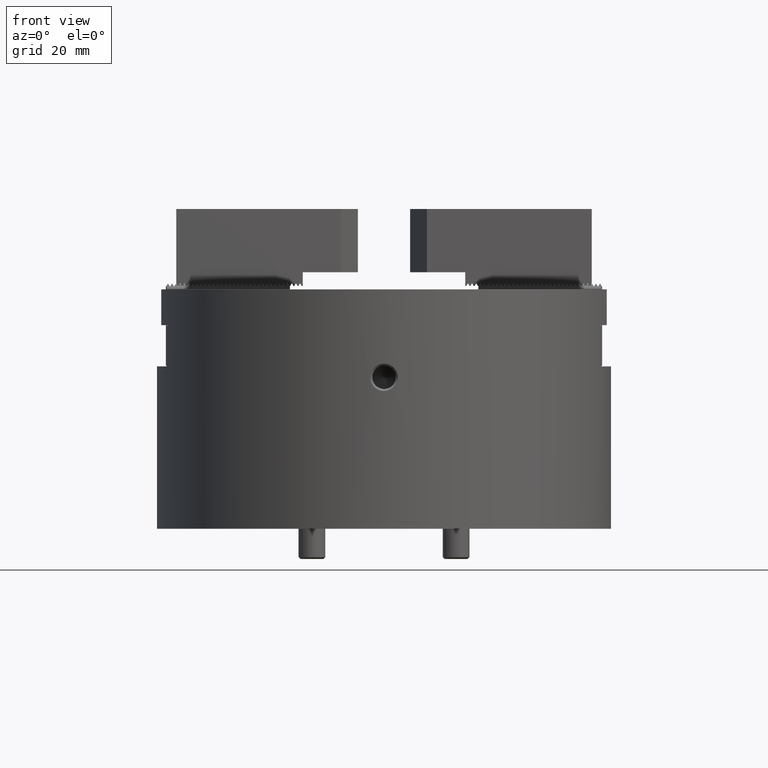
[diagram: clean part render]
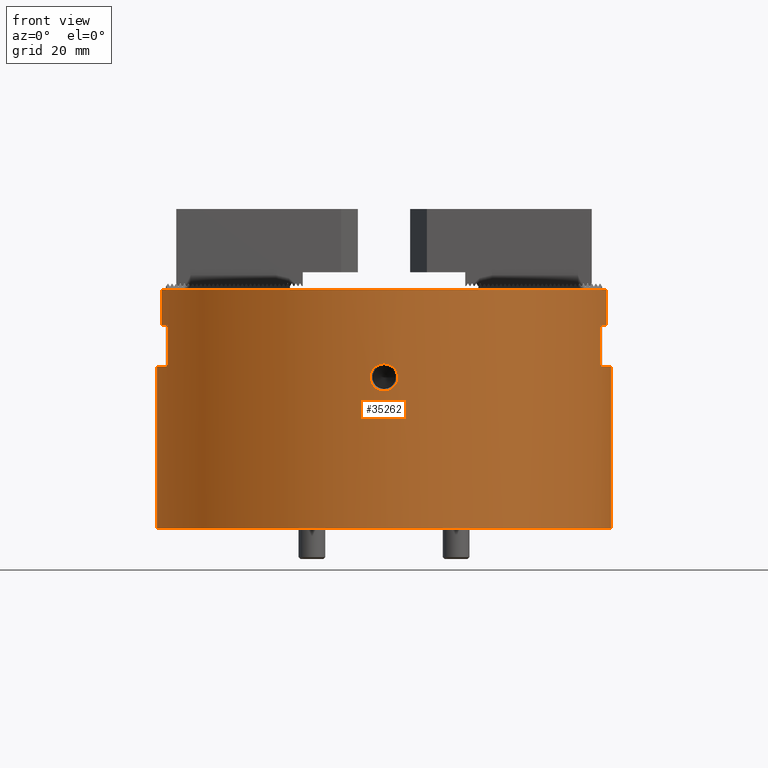
[diagram: same view with one face highlighted and labeled with its STEP entity id]
A machine part, front view. The second image highlights one B-rep face of the part: STEP entity #35262.
In plain terms, the highlighted cylindrical surface (bore or boss wall) has radius 82.5 mm, axis along (-0, 0, 1).
Its self-contained STEP definition (entity closure, byte-faithful):
#581=B_SPLINE_CURVE_WITH_KNOTS('',3,(#51946,#51947,#51948,#51949,#51950,
#51951,#51952,#51953,#51954,#51955,#51956,#51957,#51958,#51959,#51960,#51961,
#51962,#51963,#51964,#51965,#51966,#51967,#51968,#51969,#51970,#51971,#51972,
#51973,#51974,#51975,#51976,#51977,#51978,#51979,#51980),.UNSPECIFIED.,
 .T.,.F.,(1,1,1,1,1,1,1,1,1,1,1,1,1,1,1,1,1,1,1,1,1,1,1,1,1,1,1,1,1,1,1,
1,1,1,1,1,1,1,1),(-0.0953947368421053,-0.0641447368421053,-0.0328947368421053,
0.,0.0296875,0.060859375,0.09210546875,0.1233552734375,0.154605263671875,
0.185855263183594,0.21710526315918,0.248355263157959,0.279605263157898,
0.310855263157895,0.342105263157895,0.373355263157895,0.404605263157895,
0.435855263157895,0.467105263157895,0.498355263157895,0.529605263157895,
0.560855263157895,0.592105263157895,0.623355263157895,0.654605263157895,
0.685855263157895,0.717105263157895,0.748355263157895,0.779605263157895,
0.810855263157895,0.842105263157895,0.873355263157895,0.904605263157895,
0.935855263157895,0.967105263157895,1.,1.0296875,1.060859375,1.09210546875),
 .UNSPECIFIED.);
#583=B_SPLINE_CURVE_WITH_KNOTS('',3,(#52103,#52104,#52105,#52106,#52107,
#52108,#52109,#52110,#52111,#52112,#52113,#52114,#52115,#52116,#52117,#52118,
#52119,#52120,#52121,#52122,#52123,#52124,#52125,#52126,#52127,#52128,#52129,
#52130,#52131,#52132,#52133,#52134,#52135,#52136,#52137),.UNSPECIFIED.,
 .T.,.F.,(1,1,1,1,1,1,1,1,1,1,1,1,1,1,1,1,1,1,1,1,1,1,1,1,1,1,1,1,1,1,1,
1,1,1,1,1,1,1,1),(-0.0953947368421053,-0.0641447368421053,-0.0328947368421053,
0.,0.0296875,0.060859375,0.09210546875,0.1233552734375,0.154605263671875,
0.185855263183594,0.21710526315918,0.248355263157959,0.279605263157898,
0.310855263157895,0.342105263157895,0.373355263157895,0.404605263157895,
0.435855263157895,0.467105263157895,0.498355263157895,0.529605263157895,
0.560855263157895,0.592105263157895,0.623355263157895,0.654605263157895,
0.685855263157895,0.717105263157895,0.748355263157895,0.779605263157895,
0.810855263157895,0.842105263157895,0.873355263157895,0.904605263157895,
0.935855263157895,0.967105263157895,1.,1.0296875,1.060859375,1.09210546875),
 .UNSPECIFIED.);
#612=CYLINDRICAL_SURFACE('',#37011,82.5);
#944=CIRCLE('',#36760,82.5);
#948=CIRCLE('',#36771,82.5);
#952=CIRCLE('',#36778,82.5);
#953=CIRCLE('',#36780,82.5);
#1002=CIRCLE('',#36985,82.5);
#1004=CIRCLE('',#36989,82.5);
#1007=CIRCLE('',#36994,82.5);
#1017=CIRCLE('',#37010,82.5);
#1018=CIRCLE('',#37012,82.5);
#2531=ORIENTED_EDGE('',*,*,#12855,.F.);
#2532=ORIENTED_EDGE('',*,*,#12860,.F.);
#2533=ORIENTED_EDGE('',*,*,#12850,.F.);
#2534=ORIENTED_EDGE('',*,*,#12337,.F.);
#2535=ORIENTED_EDGE('',*,*,#12285,.F.);
#2536=ORIENTED_EDGE('',*,*,#12294,.F.);
#2537=ORIENTED_EDGE('',*,*,#12299,.F.);
#2538=ORIENTED_EDGE('',*,*,#12893,.F.);
#2539=ORIENTED_EDGE('',*,*,#12866,.F.);
#2540=ORIENTED_EDGE('',*,*,#12870,.F.);
#2541=ORIENTED_EDGE('',*,*,#12874,.F.);
#2542=ORIENTED_EDGE('',*,*,#12335,.F.);
#2543=ORIENTED_EDGE('',*,*,#12309,.F.);
#2544=ORIENTED_EDGE('',*,*,#12320,.F.);
#2545=ORIENTED_EDGE('',*,*,#12324,.F.);
#2546=ORIENTED_EDGE('',*,*,#12890,.F.);
#2547=ORIENTED_EDGE('',*,*,#12876,.T.);
#2548=ORIENTED_EDGE('',*,*,#12818,.T.);
#2549=ORIENTED_EDGE('',*,*,#12815,.T.);
#12285=EDGE_CURVE('',#17656,#17653,#21153,.T.);
#12294=EDGE_CURVE('',#17662,#17656,#944,.T.);
#12299=EDGE_CURVE('',#17666,#17662,#21163,.T.);
#12309=EDGE_CURVE('',#17675,#17673,#21172,.T.);
#12320=EDGE_CURVE('',#17684,#17675,#948,.T.);
#12324=EDGE_CURVE('',#17688,#17684,#21184,.T.);
#12335=EDGE_CURVE('',#17673,#17691,#952,.T.);
#12337=EDGE_CURVE('',#17653,#17695,#953,.T.);
#12815=EDGE_CURVE('',#18026,#18026,#581,.T.);
#12818=EDGE_CURVE('',#18030,#18030,#583,.T.);
#12850=EDGE_CURVE('',#17695,#18067,#21532,.T.);
#12855=EDGE_CURVE('',#18071,#18072,#21537,.T.);
#12860=EDGE_CURVE('',#18067,#18071,#1002,.T.);
#12866=EDGE_CURVE('',#18080,#18081,#21546,.T.);
#12870=EDGE_CURVE('',#18084,#18080,#1004,.T.);
#12874=EDGE_CURVE('',#17691,#18084,#21552,.T.);
#12876=EDGE_CURVE('',#18087,#18087,#1007,.T.);
#12890=EDGE_CURVE('',#18072,#17688,#1017,.T.);
#12893=EDGE_CURVE('',#18081,#17666,#1018,.T.);
#17653=VERTEX_POINT('',#48639);
#17656=VERTEX_POINT('',#48644);
#17662=VERTEX_POINT('',#48662);
#17666=VERTEX_POINT('',#48672);
#17673=VERTEX_POINT('',#48690);
#17675=VERTEX_POINT('',#48694);
#17684=VERTEX_POINT('',#48717);
#17688=VERTEX_POINT('',#48726);
#17691=VERTEX_POINT('',#48739);
#17695=VERTEX_POINT('',#48750);
#18026=VERTEX_POINT('',#51981);
#18030=VERTEX_POINT('',#52138);
#18067=VERTEX_POINT('',#52308);
#18071=VERTEX_POINT('',#52317);
#18072=VERTEX_POINT('',#52319);
#18080=VERTEX_POINT('',#52339);
#18081=VERTEX_POINT('',#52341);
#18084=VERTEX_POINT('',#52348);
#18087=VERTEX_POINT('',#52360);
#21153=LINE('',#48645,#25548);
#21163=LINE('',#48673,#25558);
#21172=LINE('',#48695,#25567);
#21184=LINE('',#48727,#25579);
#21532=LINE('',#52307,#25927);
#21537=LINE('',#52318,#25932);
#21546=LINE('',#52340,#25941);
#21552=LINE('',#52355,#25947);
#25548=VECTOR('',#39260,1000.);
#25558=VECTOR('',#39286,1000.);
#25567=VECTOR('',#39303,1000.);
#25579=VECTOR('',#39329,1000.);
#25927=VECTOR('',#40097,1000.);
#25932=VECTOR('',#40104,1000.);
#25941=VECTOR('',#40121,1000.);
#25947=VECTOR('',#40135,1000.);
#30205=EDGE_LOOP('',(#2531,#2532,#2533,#2534,#2535,#2536,#2537,#2538,#2539,
#2540,#2541,#2542,#2543,#2544,#2545,#2546));
#30206=EDGE_LOOP('',(#2547));
#30207=EDGE_LOOP('',(#2548));
#30208=EDGE_LOOP('',(#2549));
#32165=FACE_BOUND('',#30205,.T.);
#32166=FACE_BOUND('',#30206,.T.);
#32167=FACE_BOUND('',#30207,.T.);
#32168=FACE_BOUND('',#30208,.T.);
#35262=ADVANCED_FACE('',(#32165,#32166,#32167,#32168),#612,.T.);
#36760=AXIS2_PLACEMENT_3D('',#48663,#39278,#39279);
#36771=AXIS2_PLACEMENT_3D('',#48718,#39322,#39323);
#36778=AXIS2_PLACEMENT_3D('',#48745,#39347,#39348);
#36780=AXIS2_PLACEMENT_3D('',#48749,#39352,#39353);
#36985=AXIS2_PLACEMENT_3D('',#52328,#40111,#40112);
#36989=AXIS2_PLACEMENT_3D('',#52349,#40127,#40128);
#36994=AXIS2_PLACEMENT_3D('',#52359,#40140,#40141);
#37010=AXIS2_PLACEMENT_3D('',#52387,#40176,#40177);
#37011=AXIS2_PLACEMENT_3D('',#52390,#40180,#40181);
#37012=AXIS2_PLACEMENT_3D('',#52391,#40182,#40183);
#39260=DIRECTION('',(2.34290668463255E-15,0.,-1.));
#39278=DIRECTION('',(2.34290668463255E-15,-8.75811540203011E-47,-1.));
#39279=DIRECTION('',(-1.,0.,-2.3339915858597E-15));
#39286=DIRECTION('',(2.34290668463255E-15,0.,-1.));
#39303=DIRECTION('',(2.34290668463255E-15,0.,-1.));
#39322=DIRECTION('',(2.34290668463255E-15,0.,-1.));
#39323=DIRECTION('',(-1.,0.,-2.3339915858597E-15));
#39329=DIRECTION('',(2.34290668463255E-15,0.,-1.));
#39347=DIRECTION('',(-2.34290668463255E-15,0.,1.));
#39348=DIRECTION('',(1.,0.,2.35501853708366E-15));
#39352=DIRECTION('',(-2.34290668463255E-15,8.75811540203011E-47,1.));
#39353=DIRECTION('',(1.,0.,2.35501853708366E-15));
#40097=DIRECTION('',(-2.34290668463255E-15,0.,1.));
#40104=DIRECTION('',(-2.34290668463255E-15,0.,1.));
#40111=DIRECTION('',(2.34290668463255E-15,-8.75811540203011E-47,-1.));
#40112=DIRECTION('',(-1.,0.,-2.3339915858597E-15));
#40121=DIRECTION('',(-2.34290668463255E-15,0.,1.));
#40127=DIRECTION('',(2.34290668463255E-15,0.,-1.));
#40128=DIRECTION('',(-1.,0.,-2.3339915858597E-15));
#40135=DIRECTION('',(-2.34290668463255E-15,0.,1.));
#40140=DIRECTION('',(-2.34290668463255E-15,0.,1.));
#40141=DIRECTION('',(1.,0.,2.35501853708366E-15));
#40176=DIRECTION('',(-2.34290668463255E-15,0.,1.));
#40177=DIRECTION('',(1.,0.,2.34290668463255E-15));
#40180=DIRECTION('',(-2.34290668463255E-15,0.,1.));
#40181=DIRECTION('',(1.,0.,2.34290668463255E-15));
#40182=DIRECTION('',(-2.34290668463255E-15,0.,1.));
#40183=DIRECTION('',(1.,0.,2.34290668463255E-15));
#48639=CARTESIAN_POINT('',(78.620925967582,-25.,-27.9999999999998));
#48644=CARTESIAN_POINT('',(78.620925967582,-25.,-12.9999999999998));
#48645=CARTESIAN_POINT('',(78.620925967582,-25.,1.84201493001449E-13));
#48662=CARTESIAN_POINT('',(80.933614771614,-16.,-12.9999999999998));
#48663=CARTESIAN_POINT('',(3.04577869002232E-14,0.,-13.));
#48672=CARTESIAN_POINT('',(80.9336147716139,-16.,1.83957742529247E-13));
#48673=CARTESIAN_POINT('',(80.9336147716139,-16.,1.8961990705989E-13));
#48690=CARTESIAN_POINT('',(-78.6209259675819,25.,-28.0000000000002));
#48694=CARTESIAN_POINT('',(-78.6209259675819,25.,-13.0000000000002));
#48695=CARTESIAN_POINT('',(-78.620925967582,25.,-1.84201493001449E-13));
#48717=CARTESIAN_POINT('',(-80.9336147716139,16.,-13.0000000000002));
#48718=CARTESIAN_POINT('',(3.04577869002232E-14,0.,-13.));
#48726=CARTESIAN_POINT('',(-80.9336147716139,16.,-1.95282071590533E-13));
#48727=CARTESIAN_POINT('',(-80.9336147716139,16.,-1.8961990705989E-13));
#48739=CARTESIAN_POINT('',(-78.6209259675819,-25.,-28.0000000000002));
#48745=CARTESIAN_POINT('',(6.56013871697114E-14,0.,-28.));
#48749=CARTESIAN_POINT('',(6.56013871697114E-14,0.,-28.));
#48750=CARTESIAN_POINT('',(78.620925967582,25.,-27.9999999999998));
#51946=CARTESIAN_POINT('',(-1.01666785477267,-82.4957242257783,-27.1090569153301));
#51947=CARTESIAN_POINT('',(-0.0336899645346323,-82.5019762403487,-27.0044012761615));
#51948=CARTESIAN_POINT('',(0.948964264912092,-82.4963484132478,-27.0997360815935));
#51949=CARTESIAN_POINT('',(1.87904847056179,-82.480291147664,-27.371983095108));
#51950=CARTESIAN_POINT('',(2.75428569701464,-82.4554039168387,-27.8212844065526));
#51951=CARTESIAN_POINT('',(3.52728905476213,-82.4255661966444,-28.4314232731536));
#51952=CARTESIAN_POINT('',(4.15773908593173,-82.3957764037634,-29.1834988977608));
#51953=CARTESIAN_POINT('',(4.62955087821391,-82.3702973600273,-30.0440454553973));
#51954=CARTESIAN_POINT('',(4.92809477523013,-82.3527551571405,-30.9769148987487));
#51955=CARTESIAN_POINT('',(5.03998430129109,-82.3458955032594,-31.9499558261725));
#51956=CARTESIAN_POINT('',(4.95023127111049,-82.3514108471488,-32.9223439292324));
#51957=CARTESIAN_POINT('',(4.67075111074579,-82.3679425038303,-33.8607466442684));
#51958=CARTESIAN_POINT('',(4.21683739296586,-82.3927369588113,-34.7288936968641));
#51959=CARTESIAN_POINT('',(3.60186299531467,-82.4222956639042,-35.4946632037996));
#51960=CARTESIAN_POINT('',(2.84340070078812,-82.452344398535,-36.1193220039964));
#51961=CARTESIAN_POINT('',(1.97336506442084,-82.4780771334165,-36.5879245054515));
#51962=CARTESIAN_POINT('',(1.02982397112407,-82.4954738973585,-36.8847173236323));
#51963=CARTESIAN_POINT('',(0.0457517820087124,-82.5019650957507,-36.9954683494568));
#51964=CARTESIAN_POINT('',(-0.936069000011913,-82.4965883486634,-36.9056345663925));
#51965=CARTESIAN_POINT('',(-1.88212655968957,-82.4802222643563,-36.6281972341844));
#51966=CARTESIAN_POINT('',(-2.75685849795761,-82.4553137482567,-36.1777158566951));
#51967=CARTESIAN_POINT('',(-3.52898787446693,-82.425492015211,-35.5667437089117));
#51968=CARTESIAN_POINT('',(-4.15914019883053,-82.3957053126125,-34.8145029536614));
#51969=CARTESIAN_POINT('',(-4.63077128016023,-82.3702284581274,-33.9544970039788));
#51970=CARTESIAN_POINT('',(-4.92904399572223,-82.3526978796815,-33.0221392590896));
#51971=CARTESIAN_POINT('',(-5.04012680698565,-82.3458866752762,-32.0488976873925));
#51972=CARTESIAN_POINT('',(-4.94907243279476,-82.3514815254443,-31.075662703311));
#51973=CARTESIAN_POINT('',(-4.6684172124086,-82.368076303877,-30.1365751987924));
#51974=CARTESIAN_POINT('',(-4.21360811045479,-82.3929042484123,-29.2678450817391));
#51975=CARTESIAN_POINT('',(-3.59787425049083,-82.4224707386213,-28.5015472191875));
#51976=CARTESIAN_POINT('',(-2.84029099257276,-82.4524440859362,-27.8770336801624));
#51977=CARTESIAN_POINT('',(-1.97350469529797,-82.4780610681668,-27.4096623685848));
#51978=CARTESIAN_POINT('',(-1.01666785477267,-82.4957242257783,-27.1090569153301));
#51979=CARTESIAN_POINT('',(-0.0336899645346323,-82.5019762403487,-27.0044012761615));
#51980=CARTESIAN_POINT('',(0.948964264912092,-82.4963484132478,-27.0997360815935));
#51981=CARTESIAN_POINT('',(4.81917817801785E-14,-82.5,-27.0376905470147));
#52103=CARTESIAN_POINT('',(1.01666785475897,82.4957242257784,-27.1090569153301));
#52104=CARTESIAN_POINT('',(0.0336899645492107,82.5019762403488,-27.0044012761649));
#52105=CARTESIAN_POINT('',(-0.94896426495292,82.4963484132473,-27.0997360815813));
#52106=CARTESIAN_POINT('',(-1.87904847055926,82.4802911476639,-27.3719830950862));
#52107=CARTESIAN_POINT('',(-2.75428569703851,82.455403916838,-27.821284406512));
#52108=CARTESIAN_POINT('',(-3.52728905478865,82.4255661966433,-28.4314232731897));
#52109=CARTESIAN_POINT('',(-4.15773908600384,82.3957764037597,-29.1834988978346));
#52110=CARTESIAN_POINT('',(-4.62955087821389,82.3702973600272,-30.044045455391));
#52111=CARTESIAN_POINT('',(-4.92809477522702,82.3527551571407,-30.9769148985874));
#52112=CARTESIAN_POINT('',(-5.03998430129396,82.3458955032592,-31.9499558261857));
#52113=CARTESIAN_POINT('',(-4.95023127111127,82.3514108471487,-32.9223439292802));
#52114=CARTESIAN_POINT('',(-4.67075111081519,82.3679425038262,-33.8607466442646));
#52115=CARTESIAN_POINT('',(-4.21683739307847,82.3927369588055,-34.7288936967599));
#52116=CARTESIAN_POINT('',(-3.60186299535669,82.4222956639029,-35.4946632037903));
#52117=CARTESIAN_POINT('',(-2.84340070063166,82.4523443985406,-36.1193220040964));
#52118=CARTESIAN_POINT('',(-1.97336506435737,82.4780771334176,-36.5879245054848));
#52119=CARTESIAN_POINT('',(-1.02982397113106,82.4954738973582,-36.8847173236409));
#52120=CARTESIAN_POINT('',(-0.0457517820270942,82.5019650957509,-36.9954683494585));
#52121=CARTESIAN_POINT('',(0.936069000075932,82.4965883486628,-36.9056345663773));
#52122=CARTESIAN_POINT('',(1.88212655972454,82.4802222643555,-36.6281972341194));
#52123=CARTESIAN_POINT('',(2.75685849803961,82.455313748254,-36.1777158566185));
#52124=CARTESIAN_POINT('',(3.52898787447093,82.4254920152106,-35.5667437088814));
#52125=CARTESIAN_POINT('',(4.15914019879828,82.3957053126142,-34.8145029537601));
#52126=CARTESIAN_POINT('',(4.63077128012117,82.3702284581296,-33.9544970040589));
#52127=CARTESIAN_POINT('',(4.92904399566802,82.3526978796847,-33.0221392592783));
#52128=CARTESIAN_POINT('',(5.04012680699435,82.3458866752757,-32.0488976874224));
#52129=CARTESIAN_POINT('',(4.94907243280516,82.3514815254437,-31.0756627032381));
#52130=CARTESIAN_POINT('',(4.66841721243494,82.3680763038756,-30.1365751986907));
#52131=CARTESIAN_POINT('',(4.21360811040629,82.3929042484149,-29.2678450816153));
#52132=CARTESIAN_POINT('',(3.59787425047372,82.4224707386218,-28.5015472192027));
#52133=CARTESIAN_POINT('',(2.84029099262883,82.4524440859342,-27.8770336802062));
#52134=CARTESIAN_POINT('',(1.97350469531604,82.4780610681666,-27.409662368585));
#52135=CARTESIAN_POINT('',(1.01666785475897,82.4957242257784,-27.1090569153301));
#52136=CARTESIAN_POINT('',(0.0336899645492107,82.5019762403488,-27.0044012761649));
#52137=CARTESIAN_POINT('',(-0.94896426495292,82.4963484132473,-27.0997360815813));
#52138=CARTESIAN_POINT('',(6.83984539661099E-14,82.5,-27.0376905470147));
#52307=CARTESIAN_POINT('',(78.620925967582,25.,1.84201493001449E-13));
#52308=CARTESIAN_POINT('',(78.620925967582,25.,-12.9999999999998));
#52317=CARTESIAN_POINT('',(80.933614771614,16.,-12.9999999999998));
#52318=CARTESIAN_POINT('',(80.9336147716139,16.,1.8961990705989E-13));
#52319=CARTESIAN_POINT('',(80.9336147716139,16.,1.83957742529247E-13));
#52328=CARTESIAN_POINT('',(3.04577869002232E-14,0.,-13.));
#52339=CARTESIAN_POINT('',(-80.9336147716139,-16.,-13.0000000000002));
#52340=CARTESIAN_POINT('',(-80.9336147716139,-16.,-1.8961990705989E-13));
#52341=CARTESIAN_POINT('',(-80.9336147716139,-16.,-1.95282071590533E-13));
#52348=CARTESIAN_POINT('',(-78.6209259675819,-25.,-13.0000000000002));
#52349=CARTESIAN_POINT('',(3.04577869002232E-14,0.,-13.));
#52355=CARTESIAN_POINT('',(-78.620925967582,-25.,-1.84201493001449E-13));
#52359=CARTESIAN_POINT('',(2.03832881563032E-13,0.,-87.));
#52360=CARTESIAN_POINT('',(82.5000000000002,0.,-86.9999999999998));
#52387=CARTESIAN_POINT('',(1.32659231283319E-29,0.,-5.66216453064261E-15));
#52390=CARTESIAN_POINT('',(0.,0.,0.));
#52391=CARTESIAN_POINT('',(1.32659231283319E-29,0.,-5.66216453064261E-15));